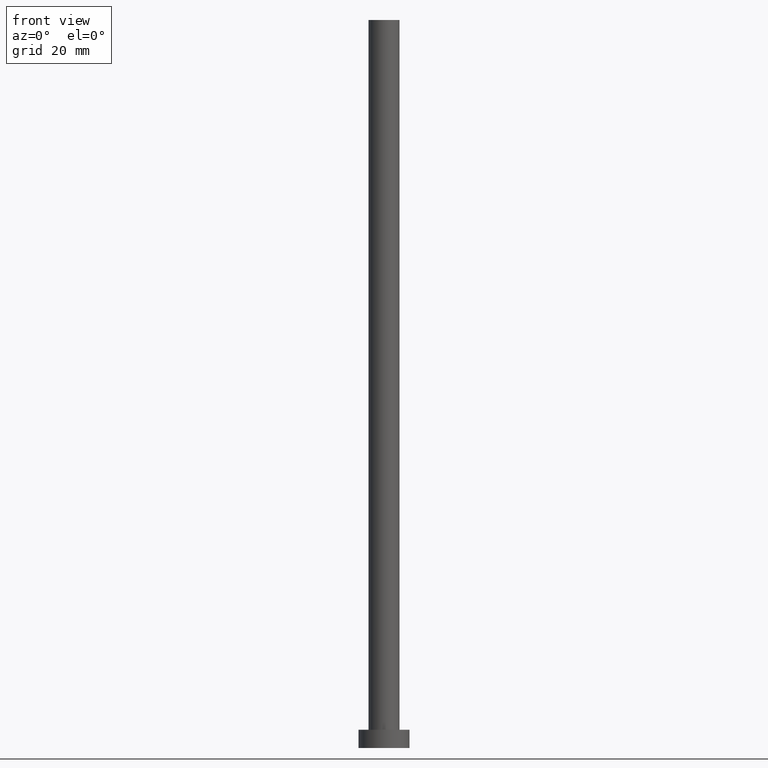
[diagram: clean part render]
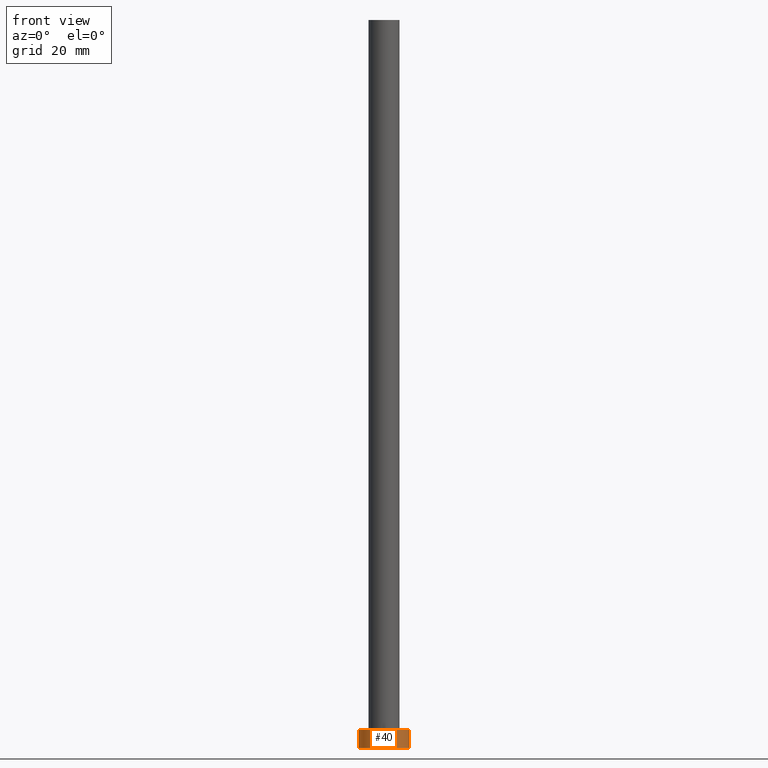
[diagram: same view with one face highlighted and labeled with its STEP entity id]
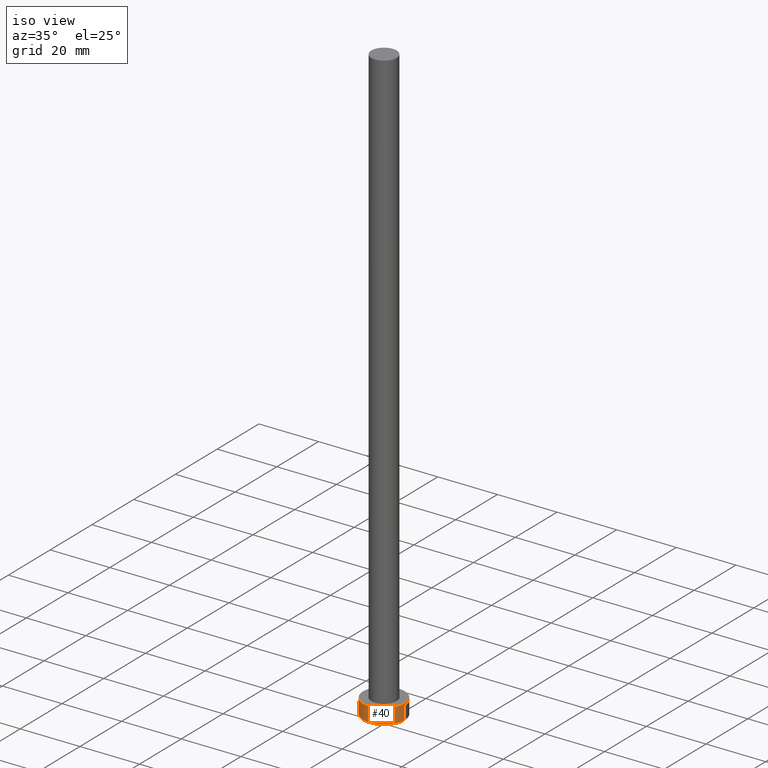
[diagram: same view with one face highlighted and labeled with its STEP entity id]
A machine part, front view. The second image highlights one B-rep face of the part: STEP entity #40.
A second angle (iso view) of the same face is appended — the face is thin or edge-on in the first view.
In plain terms, the highlighted cylindrical surface (edge-blend (fillet) strip) has radius 7 mm, axis along (-0, -0, -1).
Its self-contained STEP definition (entity closure, byte-faithful):
#7 = DIRECTION ( 'NONE',  ( 1.000000000000000000, 0.000000000000000000, 0.000000000000000000 ) ) ;
#13 = VERTEX_POINT ( 'NONE', #32 ) ;
#14 = AXIS2_PLACEMENT_3D ( 'NONE', #126, #165, #78 ) ;
#17 = CIRCLE ( 'NONE', #211, 7.000000000000000000 ) ;
#32 = CARTESIAN_POINT ( 'NONE',  ( -7.000000000000000000, 0.000000000000000000, 0.000000000000000000 ) ) ;
#35 = CARTESIAN_POINT ( 'NONE',  ( 7.000000000000000000, 8.572527594031473190E-16, 5.000000000000000000 ) ) ;
#40 = ADVANCED_FACE ( 'NONE', ( #247 ), #65, .T. ) ;
#45 = VERTEX_POINT ( 'NONE', #86 ) ;
#65 = CYLINDRICAL_SURFACE ( 'NONE', #191, 7.000000000000000000 ) ;
#68 = EDGE_CURVE ( 'NONE', #45, #13, #116, .T. ) ;
#72 = DIRECTION ( 'NONE',  ( -0.000000000000000000, -0.000000000000000000, -1.000000000000000000 ) ) ;
#78 = DIRECTION ( 'NONE',  ( 1.000000000000000000, 0.000000000000000000, 0.000000000000000000 ) ) ;
#86 = CARTESIAN_POINT ( 'NONE',  ( -7.000000000000000000, 0.000000000000000000, 5.000000000000000000 ) ) ;
#88 = DIRECTION ( 'NONE',  ( -0.000000000000000000, -0.000000000000000000, -1.000000000000000000 ) ) ;
#103 = CARTESIAN_POINT ( 'NONE',  ( 0.000000000000000000, 0.000000000000000000, 0.000000000000000000 ) ) ;
#105 = EDGE_CURVE ( 'NONE', #106, #131, #160, .T. ) ;
#106 = VERTEX_POINT ( 'NONE', #35 ) ;
#116 = LINE ( 'NONE', #178, #159 ) ;
#120 = DIRECTION ( 'NONE',  ( -1.000000000000000000, 0.000000000000000000, 0.000000000000000000 ) ) ;
#126 = CARTESIAN_POINT ( 'NONE',  ( 0.000000000000000000, 0.000000000000000000, 5.000000000000000000 ) ) ;
#131 = VERTEX_POINT ( 'NONE', #161 ) ;
#133 = EDGE_CURVE ( 'NONE', #13, #131, #17, .T. ) ;
#159 = VECTOR ( 'NONE', #72, 1000.000000000000000 ) ;
#160 = LINE ( 'NONE', #238, #166 ) ;
#161 = CARTESIAN_POINT ( 'NONE',  ( 7.000000000000000000, 8.572527594031473190E-16, 0.000000000000000000 ) ) ;
#165 = DIRECTION ( 'NONE',  ( 0.000000000000000000, 0.000000000000000000, 1.000000000000000000 ) ) ;
#166 = VECTOR ( 'NONE', #215, 1000.000000000000000 ) ;
#174 = ORIENTED_EDGE ( 'NONE', *, *, #68, .T. ) ;
#178 = CARTESIAN_POINT ( 'NONE',  ( -7.000000000000000000, 0.000000000000000000, 5.000000000000000000 ) ) ;
#189 = ORIENTED_EDGE ( 'NONE', *, *, #105, .F. ) ;
#191 = AXIS2_PLACEMENT_3D ( 'NONE', #199, #88, #120 ) ;
#192 = EDGE_LOOP ( 'NONE', ( #189, #210, #174, #232 ) ) ;
#196 = CIRCLE ( 'NONE', #14, 7.000000000000000000 ) ;
#199 = CARTESIAN_POINT ( 'NONE',  ( 0.000000000000000000, 0.000000000000000000, 5.000000000000000000 ) ) ;
#209 = EDGE_CURVE ( 'NONE', #45, #106, #196, .T. ) ;
#210 = ORIENTED_EDGE ( 'NONE', *, *, #209, .F. ) ;
#211 = AXIS2_PLACEMENT_3D ( 'NONE', #103, #240, #7 ) ;
#215 = DIRECTION ( 'NONE',  ( -0.000000000000000000, -0.000000000000000000, -1.000000000000000000 ) ) ;
#232 = ORIENTED_EDGE ( 'NONE', *, *, #133, .T. ) ;
#238 = CARTESIAN_POINT ( 'NONE',  ( 7.000000000000000000, 8.572527594031473190E-16, 5.000000000000000000 ) ) ;
#240 = DIRECTION ( 'NONE',  ( 0.000000000000000000, 0.000000000000000000, 1.000000000000000000 ) ) ;
#247 = FACE_OUTER_BOUND ( 'NONE', #192, .T. ) ;